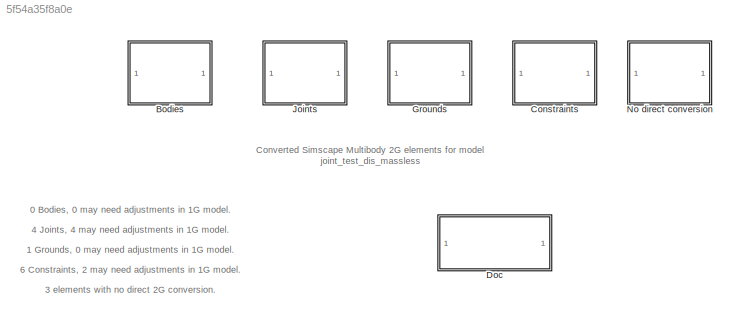
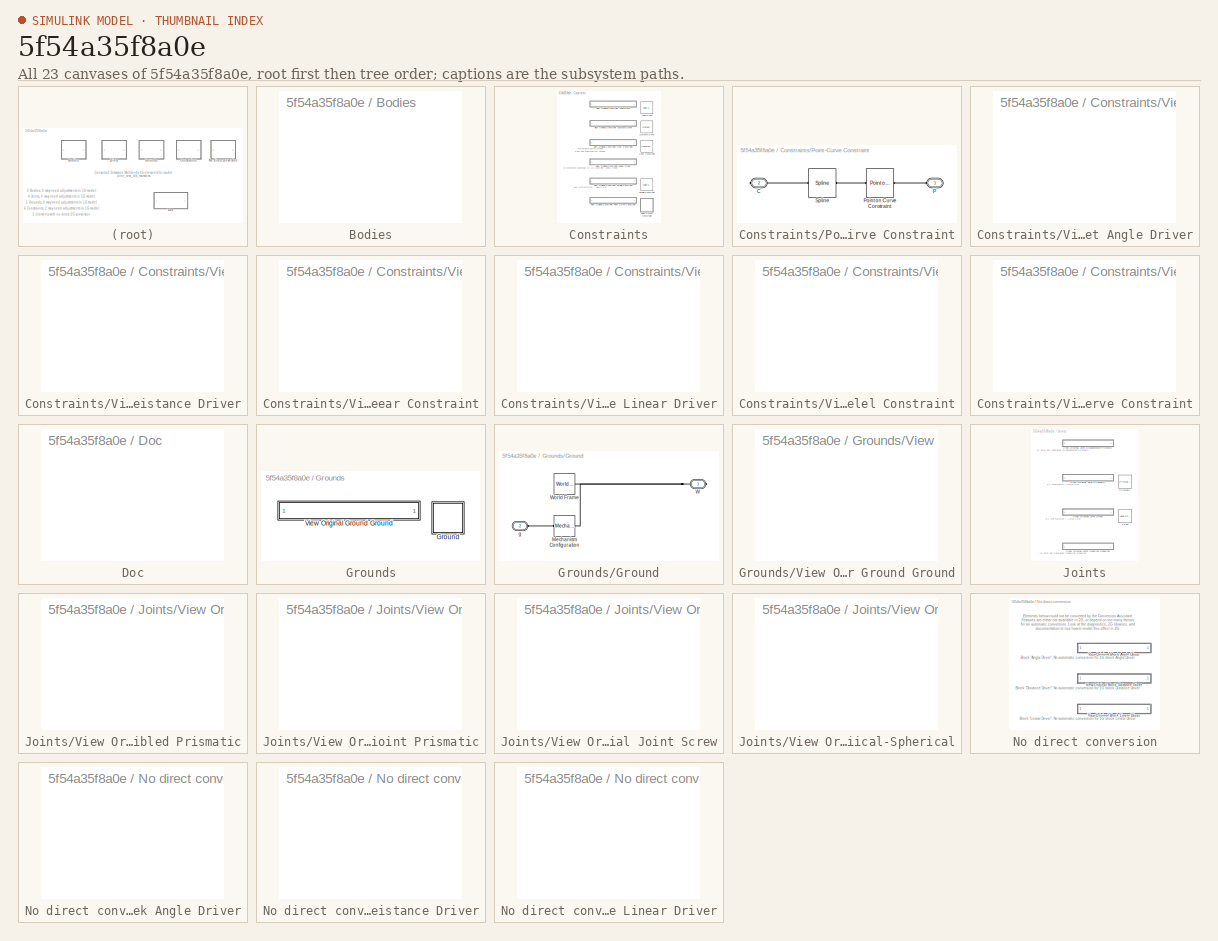
[diagram: thumbnail index - all 23 canvases of the model, root first then tree order]
MODEL slx_5f54a35f8a0e
KIND model
CONFIG AbsTol = auto
CONFIG EnableMultiTasking = off
CONFIG FixedStep = auto
CONFIG MaxStep = auto
CONFIG MinStep = auto
CONFIG RelTol = 1e-3
CONFIG SampleTimeConstraint = Unconstrained
CONFIG Solver = VariableStepAuto
CONFIG SolverName = VariableStepAuto
CONFIG StartTime = 0.0
CONFIG StopTime = 10.0
BLOCK [SubSystem] Bodies
  Ports = []
  RequestExecContextInheritance = off
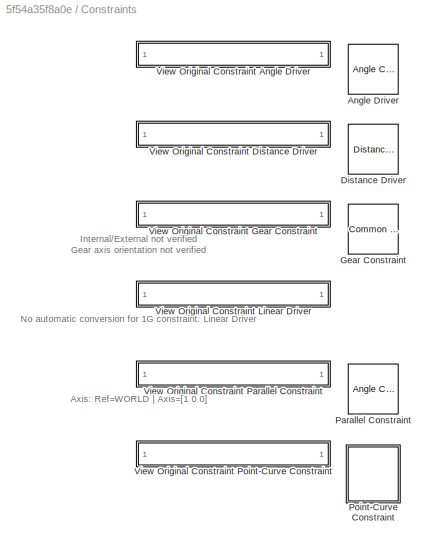
BLOCK [SubSystem] Constraints
  Ports = []
  RequestExecContextInheritance = off
BLOCK [Reference] Constraints/Angle Driver  REF=sm_lib/Constraints/Angle
Constraint
  Ports = [0, 0, 0, 0, 0, 1, 1]
  SourceBlock = sm_lib/Constraints/Angle\nConstraint
  SourceProductBaseCode = MS
  SourceProductName = Simscape Multibody
  SourceType = Angle\nConstraint
BLOCK [Reference] Constraints/Distance Driver  REF=sm_lib/Constraints/Distance
Constraint
  Ports = [0, 0, 0, 0, 0, 1, 1]
  SourceBlock = sm_lib/Constraints/Distance\nConstraint
  SourceProductBaseCode = MS
  SourceProductName = Simscape Multibody
  SourceType = Distance\nConstraint
BLOCK [Reference] Constraints/Gear Constraint  REF=sm_lib/Gears and
Couplings/Gears/Common Gear
Constraint
  Ports = [0, 0, 0, 0, 0, 1, 1]
  SourceBlock = sm_lib/Gears and\nCouplings/Gears/Common Gear\nConstraint
  SourceProductBaseCode = MS
  SourceProductName = Simscape Multibody
  SourceType = Common Gear\nConstraint
BLOCK [Reference] Constraints/Parallel Constraint  REF=sm_lib/Constraints/Angle
Constraint
  Ports = [0, 0, 0, 0, 0, 1, 1]
  SourceBlock = sm_lib/Constraints/Angle\nConstraint
  SourceProductBaseCode = MS
  SourceProductName = Simscape Multibody
  SourceType = Angle\nConstraint
BLOCK [SubSystem] Constraints/Point-Curve Constraint
  Ports = [0, 0, 0, 0, 0, 1, 1]
  RequestExecContextInheritance = off
BLOCK [PMIOPort] Constraints/Point-Curve Constraint/C
  Port = 2
  Side = Right
BLOCK [PMIOPort] Constraints/Point-Curve Constraint/P
  Side = Left
BLOCK [Reference] Constraints/Point-Curve Constraint/Point on Curve Constraint  REF=sm_lib/Constraints/Point on Curve
Constraint
  Ports = [0, 0, 0, 0, 0, 1, 1]
  SourceBlock = sm_lib/Constraints/Point on Curve\nConstraint
  SourceProductBaseCode = MS
  SourceProductName = Simscape Multibody
  SourceType = Point on Curve\nConstraint
BLOCK [Reference] Constraints/Point-Curve Constraint/Spline  REF=sm_lib/Curves and Surfaces/Spline
  Ports = [0, 0, 0, 0, 0, 1, 1]
  SourceBlock = sm_lib/Curves and Surfaces/Spline
  SourceProductBaseCode = MS
  SourceProductName = Simscape Multibody
  SourceType = Spline
BLOCK [SubSystem] Constraints/View Original Constraint Angle Driver
  OpenFcn = hilite_system('joint_test_dis_massless/Angle Driver');
  Ports = []
  RequestExecContextInheritance = off
BLOCK [SubSystem] Constraints/View Original Constraint Distance Driver
  OpenFcn = hilite_system('joint_test_dis_massless/Distance Driver');
  Ports = []
  RequestExecContextInheritance = off
BLOCK [SubSystem] Constraints/View Original Constraint Gear Constraint
  OpenFcn = hilite_system('joint_test_dis_massless/Gear Constraint');
  Ports = []
  RequestExecContextInheritance = off
BLOCK [SubSystem] Constraints/View Original Constraint Linear Driver
  OpenFcn = hilite_system('joint_test_dis_massless/Linear Driver');
  Ports = []
  RequestExecContextInheritance = off
BLOCK [SubSystem] Constraints/View Original Constraint Parallel Constraint
  OpenFcn = hilite_system('joint_test_dis_massless/Parallel Constraint');
  Ports = []
  RequestExecContextInheritance = off
BLOCK [SubSystem] Constraints/View Original Constraint Point-Curve Constraint
  OpenFcn = hilite_system('joint_test_dis_massless/Point-Curve Constraint');
  Ports = []
  RequestExecContextInheritance = off
BLOCK [SubSystem] Doc
  OpenFcn = web('SM1G2G_Warnings_Help.html');
  Ports = []
  RequestExecContextInheritance = off
BLOCK [SubSystem] Grounds
  Ports = []
  RequestExecContextInheritance = off
BLOCK [SubSystem] Grounds/Ground
  Ports = [0, 0, 0, 0, 0, 1, 1]
  RequestExecContextInheritance = off
BLOCK [Reference] Grounds/Ground/Mechanism Configuration  REF=sm_lib/Utilities/Mechanism
Configuration
  Ports = [0, 0, 0, 0, 0, 1, 1]
  SourceBlock = sm_lib/Utilities/Mechanism\nConfiguration
  SourceProductBaseCode = MS
  SourceProductName = Simscape Multibody
  SourceType = Mechanism\nConfiguration
BLOCK [PMIOPort] Grounds/Ground/W
  Side = Right
BLOCK [Reference] Grounds/Ground/World Frame  REF=sm_lib/Frames and
Transforms/World Frame
  Ports = [0, 0, 0, 0, 0, 0, 1]
  SourceBlock = sm_lib/Frames and\nTransforms/World Frame
  SourceProductBaseCode = MS
  SourceProductName = Simscape Multibody
  SourceType = World Frame
BLOCK [PMIOPort] Grounds/Ground/g
  Port = 2
  Side = Left
BLOCK [SubSystem] Grounds/View Original Ground Ground
  OpenFcn = hilite_system('joint_test_dis_massless/Ground');
  Ports = []
  RequestExecContextInheritance = off
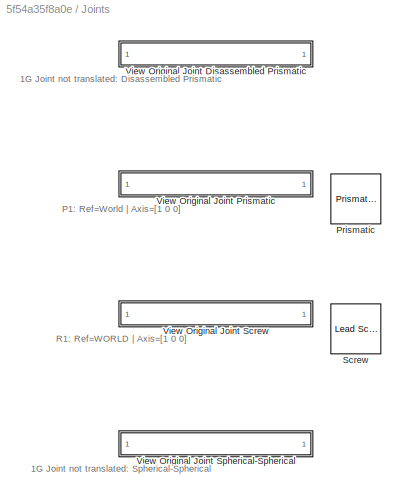
BLOCK [SubSystem] Joints
  Ports = []
  RequestExecContextInheritance = off
BLOCK [Reference] Joints/Prismatic  REF=sm_lib/Joints/Prismatic
Joint
  Ports = [0, 0, 0, 0, 0, 1, 1]
  SourceBlock = sm_lib/Joints/Prismatic\nJoint
  SourceProductBaseCode = MS
  SourceProductName = Simscape Multibody
  SourceType = Prismatic\nJoint
BLOCK [Reference] Joints/Screw  REF=sm_lib/Joints/Lead Screw
Joint
  Ports = [0, 0, 0, 0, 0, 1, 1]
  SourceBlock = sm_lib/Joints/Lead Screw\nJoint
  SourceProductBaseCode = MS
  SourceProductName = Simscape Multibody
  SourceType = Lead Screw\nJoint
BLOCK [SubSystem] Joints/View Original Joint Disassembled Prismatic
  OpenFcn = hilite_system('joint_test_dis_massless/Disassembled Prismatic');
  Ports = []
  RequestExecContextInheritance = off
BLOCK [SubSystem] Joints/View Original Joint Prismatic
  OpenFcn = hilite_system('joint_test_dis_massless/Prismatic');
  Ports = []
  RequestExecContextInheritance = off
BLOCK [SubSystem] Joints/View Original Joint Screw
  OpenFcn = hilite_system('joint_test_dis_massless/Screw');
  Ports = []
  RequestExecContextInheritance = off
BLOCK [SubSystem] Joints/View Original Joint Spherical-Spherical
  OpenFcn = hilite_system('joint_test_dis_massless/Spherical-Spherical');
  Ports = []
  RequestExecContextInheritance = off
BLOCK [SubSystem] No direct conversion
  Ports = []
  RequestExecContextInheritance = off
BLOCK [SubSystem] No direct conversion/View Original Block Angle Driver
  OpenFcn = hilite_system('joint_test_dis_massless/Angle Driver');
  Ports = []
  RequestExecContextInheritance = off
BLOCK [SubSystem] No direct conversion/View Original Block Distance Driver
  OpenFcn = hilite_system('joint_test_dis_massless/Distance Driver');
  Ports = []
  RequestExecContextInheritance = off
BLOCK [SubSystem] No direct conversion/View Original Block Linear Driver
  OpenFcn = hilite_system('joint_test_dis_massless/Linear Driver');
  Ports = []
  RequestExecContextInheritance = off
ANNOTATION (root): 0 Bodies, 0 may need adjustments in 1G model.
ANNOTATION (root): 1 Grounds, 0 may need adjustments in 1G model.
ANNOTATION (root): 3 elements with no direct 2G conversion.
ANNOTATION (root): 4 Joints, 4 may need adjustments in 1G model.
ANNOTATION (root): 6 Constraints, 2 may need adjustments in 1G model.
ANNOTATION (root): Converted Simscape Multibody 2G elements for model joint_test_dis_massless
ANNOTATION Constraints: No automatic conversion for 1G constraint: Linear Driver
ANNOTATION Constraints: Axis: Ref=WORLD | Axis=[1 0 0]
ANNOTATION Constraints: Internal/External not verified Gear axis orientation not verified
ANNOTATION Joints: 1G Joint not translated: Disassembled Prismatic
ANNOTATION Joints: 1G Joint not translated: Spherical-Spherical
ANNOTATION Joints: P1: Ref=World | Axis=[1 0 0]
ANNOTATION Joints: R1: Ref=WORLD | Axis=[1 0 0]
ANNOTATION No direct conversion: Block "Angle Driver": No automatic conversion for 1G block Angle Driver
ANNOTATION No direct conversion: Block "Distance Driver": No automatic conversion for 1G block Distance Driver
ANNOTATION No direct conversion: Block "Linear Driver": No automatic conversion for 1G block Linear Driver
ANNOTATION No direct conversion: Elements below could not be converted by the Conversion Assistant. Features are either not available in 2G, or depend on too many factors for an automatic conversion. Look at the diagnostics, 2G libraries, and documentation to see how to model this effect in 2G.
PLINE Constraints/Point-Curve Constraint/C:RConn1 -- Constraints/Point-Curve Constraint/Spline:LConn1
PLINE Constraints/Point-Curve Constraint/P:RConn1 -- Constraints/Point-Curve Constraint/Point on Curve Constraint:RConn1
PLINE Constraints/Point-Curve Constraint/Point on Curve Constraint:LConn1 -- Constraints/Point-Curve Constraint/Spline:RConn1
PLINE Grounds/Ground/Mechanism Configuration:LConn1 -- Grounds/Ground/g:RConn1
PNET net1: Grounds/Ground/Mechanism Configuration:RConn1 -- Grounds/Ground/W:RConn1 -- Grounds/Ground/World Frame:RConn1
note: PNET lines group multi-terminal physical nets as a canonical sorted terminal list (undirected conserving connections); 2-terminal nets keep the pairwise PLINE form
